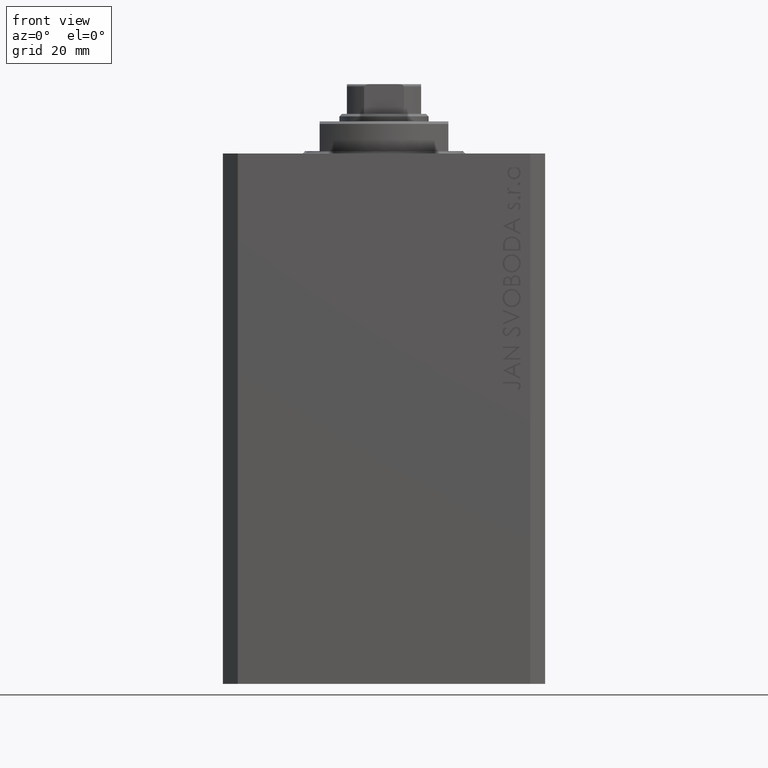
[diagram: clean part render]
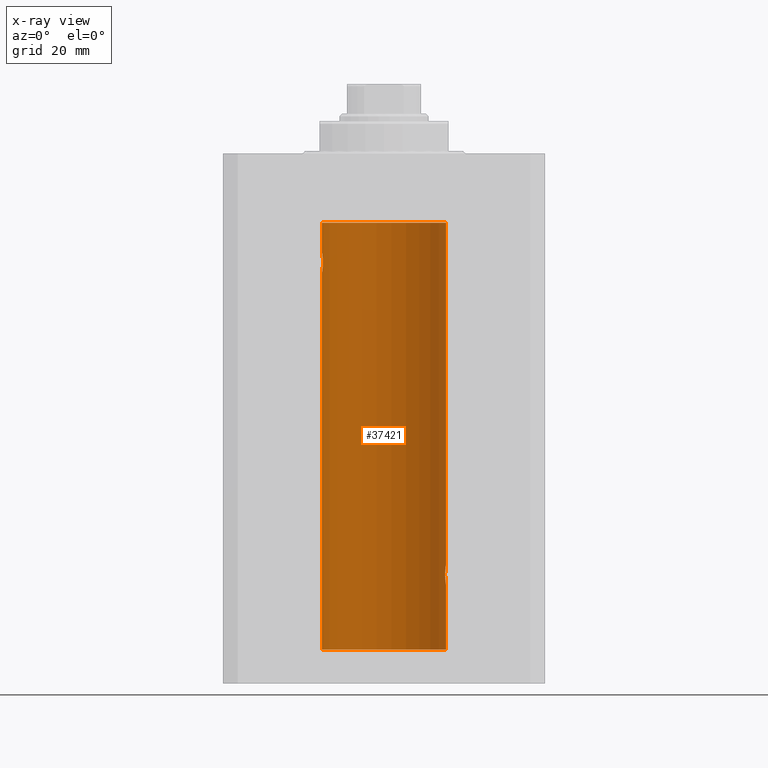
[diagram: x-ray — body ghosted, one internal face saturated and labeled with its STEP entity id]
A machine part, front view, then the same camera in x-ray: the body is ghosted and one INTERNAL B-rep face — a face not visible from any outside direction — is saturated and labeled: STEP entity #37421.
In plain terms, the highlighted cylindrical surface (partial cylindrical patch) has radius 12.5 mm, axis along (0, 0, 1).
Its self-contained STEP definition (entity closure, byte-faithful):
#149 = CARTESIAN_POINT ( 'NONE',  ( -12.50000000000000000, 1.867773856434666690E-17, -20.00000000000000000 ) ) ;
#150 = CARTESIAN_POINT ( 'NONE',  ( -12.33895470450623044, 2.000049200055401766, -22.12992629360264729 ) ) ;
#379 = VERTEX_POINT ( 'NONE', #18408 ) ;
#2638 = CYLINDRICAL_SURFACE ( 'NONE', #11450, 12.50000000000000000 ) ;
#3017 = VERTEX_POINT ( 'NONE', #4891 ) ;
#3077 = CARTESIAN_POINT ( 'NONE',  ( 12.50000000000000000, 2.320363022323678888E-15, -87.00000000000000000 ) ) ;
#3649 = EDGE_CURVE ( 'NONE', #45533, #3017, #6922, .T. ) ;
#3726 = CARTESIAN_POINT ( 'NONE',  ( -12.48390768591463207, 0.6455696738844916016, -20.10252270298193977 ) ) ;
#3795 = CARTESIAN_POINT ( 'NONE',  ( 12.34110728646152388, 1.986893050944454453, -84.73661347764983987 ) ) ;
#3982 = CARTESIAN_POINT ( 'NONE',  ( 12.50000000000000000, 0.000000000000000000, -100.0999999999999943 ) ) ;
#4878 = EDGE_CURVE ( 'NONE', #3017, #29925, #7081, .T. ) ;
#4891 = CARTESIAN_POINT ( 'NONE',  ( 12.50000000000000000, -7.266276684081261841E-23, -82.99999999999998579 ) ) ;
#4958 = CARTESIAN_POINT ( 'NONE',  ( 12.43037348241797524, 1.320834183883837554, -83.49243837704291593 ) ) ;
#5280 = DIRECTION ( 'NONE',  ( -0.000000000000000000, -0.000000000000000000, 1.000000000000000000 ) ) ;
#5412 = CARTESIAN_POINT ( 'NONE',  ( -12.50000000000000000, 1.530808498934191521E-15, -100.0999999999999943 ) ) ;
#6652 = CARTESIAN_POINT ( 'NONE',  ( 12.44079900692650931, 1.220007525301739282, -86.59017579083662497 ) ) ;
#6823 = CARTESIAN_POINT ( 'NONE',  ( -12.50000000000000000, 1.530808426276628993E-15, -23.99999999999999645 ) ) ;
#6888 = CARTESIAN_POINT ( 'NONE',  ( 12.46901623405144122, 0.8878913781257877780, -86.79689651717548315 ) ) ;
#6922 = B_SPLINE_CURVE_WITH_KNOTS ( 'NONE', 3,
 ( #7126, #36247, #3795, #18096, #14517, #43657, #10941, #25472, #16372, #4958, #12114, #41704, #30218, #26642, #45525, #11875, #41240, #19263 ),
 .UNSPECIFIED., .F., .F.,
 ( 4, 2, 2, 2, 2, 2, 2, 2, 4 ),
 ( 0.003132244164174466730, 0.003523586189974241625, 0.003914928215774016521, 0.004306270241573791416, 0.004697612267373566311, 0.005088954293173341206, 0.005480296318973116101, 0.005871638344772890997, 0.006262980370572665892 ),
 .UNSPECIFIED. ) ;
#7054 = CARTESIAN_POINT ( 'NONE',  ( -12.34109209020652465, 1.986986967296539897, -22.26269462454597914 ) ) ;
#7081 = LINE ( 'NONE', #3982, #15054 ) ;
#7123 = CARTESIAN_POINT ( 'NONE',  ( 12.33896267925302759, 2.000000000000247802, -84.99999999999998579 ) ) ;
#7126 = CARTESIAN_POINT ( 'NONE',  ( 12.33896267925302759, 2.000000000000247802, -84.99999999999998579 ) ) ;
#8353 = CARTESIAN_POINT ( 'NONE',  ( -12.50000000000000000, 1.530808498934191521E-15, -100.0999999999999943 ) ) ;
#8610 = DIRECTION ( 'NONE',  ( -0.000000000000000000, -0.000000000000000000, 1.000000000000000000 ) ) ;
#8721 = EDGE_CURVE ( 'NONE', #25425, #45832, #15049, .T. ) ;
#10158 = CARTESIAN_POINT ( 'NONE',  ( -12.39864157855465088, 1.590288205413973532, -23.21980790594580313 ) ) ;
#10223 = CARTESIAN_POINT ( 'NONE',  ( 12.33896267925302759, 2.000000000000248246, -85.26143174220784715 ) ) ;
#10395 = CARTESIAN_POINT ( 'NONE',  ( -12.48990118705761532, 0.5184196815546056047, -20.06395648222637007 ) ) ;
#10462 = CARTESIAN_POINT ( 'NONE',  ( 12.43016561391612917, 1.322713721413880661, -86.50578877836700542 ) ) ;
#10665 = ORIENTED_EDGE ( 'NONE', *, *, #4878, .T. ) ;
#10941 = CARTESIAN_POINT ( 'NONE',  ( 12.37925647381943506, 1.734744884174218571, -83.99620732598648942 ) ) ;
#11450 = AXIS2_PLACEMENT_3D ( 'NONE', #16224, #5280, #17885 ) ;
#11875 = CARTESIAN_POINT ( 'NONE',  ( 12.49788668346399945, 0.2632864803365707607, -83.01308975838333026 ) ) ;
#12114 = CARTESIAN_POINT ( 'NONE',  ( 12.44079117518645639, 1.220047488436368122, -83.40989676335082947 ) ) ;
#13585 = CARTESIAN_POINT ( 'NONE',  ( 12.50000000000000000, 2.320363022323678888E-15, -87.00000000000000000 ) ) ;
#13736 = CARTESIAN_POINT ( 'NONE',  ( -12.44076681548080288, 1.220297236145718944, -23.58991408680628155 ) ) ;
#14032 = CARTESIAN_POINT ( 'NONE',  ( 12.49789833780794446, 0.2625555164371021766, -86.98698170822147802 ) ) ;
#14125 = ORIENTED_EDGE ( 'NONE', *, *, #8721, .F. ) ;
#14207 = CARTESIAN_POINT ( 'NONE',  ( -12.39873273758732175, 1.598680238462371062, -20.77033506126851137 ) ) ;
#14310 = AXIS2_PLACEMENT_3D ( 'NONE', #31294, #23659, #38248 ) ;
#14517 = CARTESIAN_POINT ( 'NONE',  ( 12.35520276972935427, 1.897773362058238877, -84.35528278634336630 ) ) ;
#14676 = CARTESIAN_POINT ( 'NONE',  ( -12.50000000000000533, 0.1306394121199390135, -24.00000000000000711 ) ) ;
#15049 = CIRCLE ( 'NONE', #14310, 12.50000000000000000 ) ;
#15054 = VECTOR ( 'NONE', #22551, 1000.000000000000000 ) ;
#15550 = EDGE_CURVE ( 'NONE', #29925, #379, #40452, .T. ) ;
#16224 = CARTESIAN_POINT ( 'NONE',  ( 0.000000000000000000, 0.000000000000000000, -100.0999999999999943 ) ) ;
#16372 = CARTESIAN_POINT ( 'NONE',  ( 12.40916530024876430, 1.507117913375715990, -83.67865955049002480 ) ) ;
#17885 = DIRECTION ( 'NONE',  ( 1.000000000000000000, 0.000000000000000000, 0.000000000000000000 ) ) ;
#18096 = CARTESIAN_POINT ( 'NONE',  ( 12.34924836377099844, 1.935649219704934865, -84.48002062127160627 ) ) ;
#18259 = CARTESIAN_POINT ( 'NONE',  ( 12.33896267925302759, 2.000000000000247802, -84.99999999999998579 ) ) ;
#18262 = CARTESIAN_POINT ( 'NONE',  ( -12.46021263690096958, 1.002494658017156981, -20.26446744561863156 ) ) ;
#18408 = CARTESIAN_POINT ( 'NONE',  ( -12.50000000000000000, 1.530808498934191521E-15, -13.99999999999999822 ) ) ;
#19263 = CARTESIAN_POINT ( 'NONE',  ( 12.50000000000000000, -7.266276684081261841E-23, -82.99999999999998579 ) ) ;
#20948 = CARTESIAN_POINT ( 'NONE',  ( 12.46019522898365217, 1.002712894177336223, -86.73540896027598990 ) ) ;
#21614 = DIRECTION ( 'NONE',  ( 0.000000000000000000, 0.000000000000000000, 1.000000000000000000 ) ) ;
#21870 = EDGE_CURVE ( 'NONE', #25425, #26236, #30765, .T. ) ;
#22109 = ORIENTED_EDGE ( 'NONE', *, *, #39283, .F. ) ;
#22129 = AXIS2_PLACEMENT_3D ( 'NONE', #25193, #21614, #46962 ) ;
#22551 = DIRECTION ( 'NONE',  ( -0.000000000000000000, -0.000000000000000000, 1.000000000000000000 ) ) ;
#23659 = DIRECTION ( 'NONE',  ( 0.000000000000000000, 0.000000000000000000, 1.000000000000000000 ) ) ;
#23865 = ORIENTED_EDGE ( 'NONE', *, *, #15550, .T. ) ;
#24131 = VECTOR ( 'NONE', #25525, 1000.000000000000000 ) ;
#24326 = EDGE_LOOP ( 'NONE', ( #33239, #14125, #32932, #39681, #30697, #10665, #23865, #22109, #28209 ) ) ;
#24927 = CARTESIAN_POINT ( 'NONE',  ( -12.33897869807161385, 1.999901172190678089, -21.73788193668374547 ) ) ;
#25165 = CARTESIAN_POINT ( 'NONE',  ( -12.43034574091277911, 1.321095788880539024, -23.50733550364322255 ) ) ;
#25193 = CARTESIAN_POINT ( 'NONE',  ( 0.000000000000000000, 0.000000000000000000, -13.99999999999999822 ) ) ;
#25209 = CARTESIAN_POINT ( 'NONE',  ( -12.50000000000000000, 1.530808498934191521E-15, -100.0999999999999943 ) ) ;
#25402 = CARTESIAN_POINT ( 'NONE',  ( -12.48983485452574982, 0.5201193324741355539, -23.93561774521849372 ) ) ;
#25425 = VERTEX_POINT ( 'NONE', #46479 ) ;
#25472 = CARTESIAN_POINT ( 'NONE',  ( 12.39867611624532806, 1.590019252152828910, -83.77984495929609920 ) ) ;
#25525 = DIRECTION ( 'NONE',  ( -0.000000000000000000, -0.000000000000000000, 1.000000000000000000 ) ) ;
#25642 = CARTESIAN_POINT ( 'NONE',  ( -12.40913174964213184, 1.507394620545641439, -23.32102833500698225 ) ) ;
#26236 = VERTEX_POINT ( 'NONE', #13585 ) ;
#26642 = CARTESIAN_POINT ( 'NONE',  ( 12.48395395845270528, 0.6446573166014707423, -83.10222124213517247 ) ) ;
#28209 = ORIENTED_EDGE ( 'NONE', *, *, #33188, .T. ) ;
#28330 = CARTESIAN_POINT ( 'NONE',  ( 12.37760587642916477, 1.747868572747719229, -86.00639653169000098 ) ) ;
#28498 = CARTESIAN_POINT ( 'NONE',  ( -12.48394649977302073, 0.6448065707253024526, -23.89773031393659153 ) ) ;
#28810 = CARTESIAN_POINT ( 'NONE',  ( 12.39869754437268590, 1.598954131913722820, -86.22932152813008599 ) ) ;
#29925 = VERTEX_POINT ( 'NONE', #40634 ) ;
#30218 = CARTESIAN_POINT ( 'NONE',  ( 12.46910683544638232, 0.8866026273585037032, -83.20247863689694157 ) ) ;
#30697 = ORIENTED_EDGE ( 'NONE', *, *, #3649, .T. ) ;
#30765 = LINE ( 'NONE', #34589, #33920 ) ;
#31294 = CARTESIAN_POINT ( 'NONE',  ( 0.000000000000000000, 0.000000000000000000, -100.0999999999999943 ) ) ;
#31580 = B_SPLINE_CURVE_WITH_KNOTS ( 'NONE', 3,
 ( #32817, #42876, #46928, #10395, #3726, #39992, #18262, #31862, #43110, #14207, #43353, #32099, #24927, #150, #7054, #47167, #39529, #43821, #35697, #10158, #25642, #25165, #13736, #32331, #39759, #28498, #25402, #40233, #14676, #6823 ),
 .UNSPECIFIED., .F., .F.,
 ( 4, 2, 2, 2, 2, 2, 2, 2, 2, 2, 2, 2, 2, 2, 4 ),
 ( 1.814683826656258666E-20, 0.0003914362731607577369, 0.0007828725463215154739, 0.001174308819482273265, 0.001565745092643030948, 0.002348617638964546530, 0.003131490185286061895, 0.003522926458446825216, 0.003914362731607588103, 0.004305799004768351423, 0.004697235277929114744, 0.005088671551089878065, 0.005480107824250641385, 0.005871544097411404706, 0.006262980370572168026 ),
 .UNSPECIFIED. ) ;
#31639 = B_SPLINE_CURVE_WITH_KNOTS ( 'NONE', 3,
 ( #3077, #43654, #14032, #40062, #46525, #6888, #20948, #6652, #10462, #28810, #28330, #35521, #10223, #7123 ),
 .UNSPECIFIED., .F., .F.,
 ( 4, 2, 2, 2, 2, 2, 4 ),
 ( 2.254408494944823136E-18, 0.0003915305205218102386, 0.0007830610410436180920, 0.001174591561565426108, 0.001566122082087234016, 0.002349183123130850048, 0.003132244164174466730 ),
 .UNSPECIFIED. ) ;
#31862 = CARTESIAN_POINT ( 'NONE',  ( -12.44082361696003503, 1.219754986802281449, -20.40963319990594016 ) ) ;
#32099 = CARTESIAN_POINT ( 'NONE',  ( -12.34781876294798053, 1.947190906025043633, -21.47436412829509678 ) ) ;
#32331 = CARTESIAN_POINT ( 'NONE',  ( -12.46009879577771606, 1.003863686549169465, -23.73470742397611843 ) ) ;
#32817 = CARTESIAN_POINT ( 'NONE',  ( -12.50000000000000000, 1.867773856434666690E-17, -20.00000000000000000 ) ) ;
#32932 = ORIENTED_EDGE ( 'NONE', *, *, #21870, .T. ) ;
#33188 = EDGE_CURVE ( 'NONE', #42139, #34344, #31580, .T. ) ;
#33239 = ORIENTED_EDGE ( 'NONE', *, *, #44544, .F. ) ;
#33920 = VECTOR ( 'NONE', #8610, 1000.000000000000000 ) ;
#34344 = VERTEX_POINT ( 'NONE', #44026 ) ;
#34589 = CARTESIAN_POINT ( 'NONE',  ( 12.50000000000000000, 0.000000000000000000, -100.0999999999999943 ) ) ;
#35521 = CARTESIAN_POINT ( 'NONE',  ( 12.34779119491631683, 1.947363444907009633, -85.52502775168252924 ) ) ;
#35697 = CARTESIAN_POINT ( 'NONE',  ( -12.37922086519035325, 1.734998657226764829, -23.00335814299181436 ) ) ;
#36247 = CARTESIAN_POINT ( 'NONE',  ( 12.33896267925302581, 2.000000000000247358, -84.86934705949914814 ) ) ;
#37421 = ADVANCED_FACE ( 'NONE', ( #42503 ), #2638, .F. ) ;
#38248 = DIRECTION ( 'NONE',  ( 1.000000000000000000, 0.000000000000000000, 0.000000000000000000 ) ) ;
#38854 = DIRECTION ( 'NONE',  ( -0.000000000000000000, -0.000000000000000000, 1.000000000000000000 ) ) ;
#39283 = EDGE_CURVE ( 'NONE', #42139, #379, #41694, .T. ) ;
#39529 = CARTESIAN_POINT ( 'NONE',  ( -12.35517291625592051, 1.897967064543089721, -22.64415233770293412 ) ) ;
#39681 = ORIENTED_EDGE ( 'NONE', *, *, #40241, .T. ) ;
#39759 = CARTESIAN_POINT ( 'NONE',  ( -12.46909283808506430, 0.8868029758979402155, -23.79742491916155345 ) ) ;
#39992 = CARTESIAN_POINT ( 'NONE',  ( -12.46903010196599304, 0.8876934327478135378, -20.20300788371381984 ) ) ;
#40062 = CARTESIAN_POINT ( 'NONE',  ( 12.48989642018887736, 0.5185418732824252919, -86.93601292187604201 ) ) ;
#40233 = CARTESIAN_POINT ( 'NONE',  ( -12.49788564268284041, 0.2633501011236127343, -23.98690384766255335 ) ) ;
#40241 = EDGE_CURVE ( 'NONE', #26236, #45533, #31639, .T. ) ;
#40452 = CIRCLE ( 'NONE', #22129, 12.50000000000000000 ) ;
#40634 = CARTESIAN_POINT ( 'NONE',  ( 12.50000000000000000, 0.000000000000000000, -13.99999999999999822 ) ) ;
#41240 = CARTESIAN_POINT ( 'NONE',  ( 12.49999999999999822, 0.1306079576516667173, -82.99999999999997158 ) ) ;
#41694 = LINE ( 'NONE', #5412, #24131 ) ;
#41704 = CARTESIAN_POINT ( 'NONE',  ( 12.46011632531798874, 1.003644408234883434, -83.26516799687671266 ) ) ;
#42139 = VERTEX_POINT ( 'NONE', #149 ) ;
#42503 = FACE_OUTER_BOUND ( 'NONE', #24326, .T. ) ;
#42876 = CARTESIAN_POINT ( 'NONE',  ( -12.50000000000000000, 0.1323736289504353625, -20.00000000000000000 ) ) ;
#43110 = CARTESIAN_POINT ( 'NONE',  ( -12.43019346654084956, 1.322451657002078340, -20.49398366327208620 ) ) ;
#43353 = CARTESIAN_POINT ( 'NONE',  ( -12.37764291807175354, 1.747608771958140794, -20.99316879552500481 ) ) ;
#43654 = CARTESIAN_POINT ( 'NONE',  ( 12.50000000000000178, 0.1324055009716466613, -87.00000000000002842 ) ) ;
#43657 = CARTESIAN_POINT ( 'NONE',  ( 12.37021546997940291, 1.797317011867403114, -84.11295119741077997 ) ) ;
#43821 = CARTESIAN_POINT ( 'NONE',  ( -12.37018026341338839, 1.797558627508998086, -22.88656313533016373 ) ) ;
#44026 = CARTESIAN_POINT ( 'NONE',  ( -12.50000000000000000, 1.530808426276628993E-15, -23.99999999999999645 ) ) ;
#44544 = EDGE_CURVE ( 'NONE', #45832, #34344, #46265, .T. ) ;
#45525 = CARTESIAN_POINT ( 'NONE',  ( 12.48983962833819028, 0.5199974825204898288, -83.06435160808017315 ) ) ;
#45533 = VERTEX_POINT ( 'NONE', #18259 ) ;
#45832 = VERTEX_POINT ( 'NONE', #8353 ) ;
#46265 = LINE ( 'NONE', #25209, #46722 ) ;
#46479 = CARTESIAN_POINT ( 'NONE',  ( 12.50000000000000000, 0.000000000000000000, -100.0999999999999943 ) ) ;
#46525 = CARTESIAN_POINT ( 'NONE',  ( 12.48390005916863110, 0.6457215011736527899, -86.89742771554266199 ) ) ;
#46722 = VECTOR ( 'NONE', #38854, 1000.000000000000000 ) ;
#46928 = CARTESIAN_POINT ( 'NONE',  ( -12.49789934882883458, 0.2624928479599910047, -20.01301208516349917 ) ) ;
#46962 = DIRECTION ( 'NONE',  ( 1.000000000000000000, 0.000000000000000000, 0.000000000000000000 ) ) ;
#47167 = CARTESIAN_POINT ( 'NONE',  ( -12.34922241902463114, 1.935814255713574239, -22.51937350851555308 ) ) ;